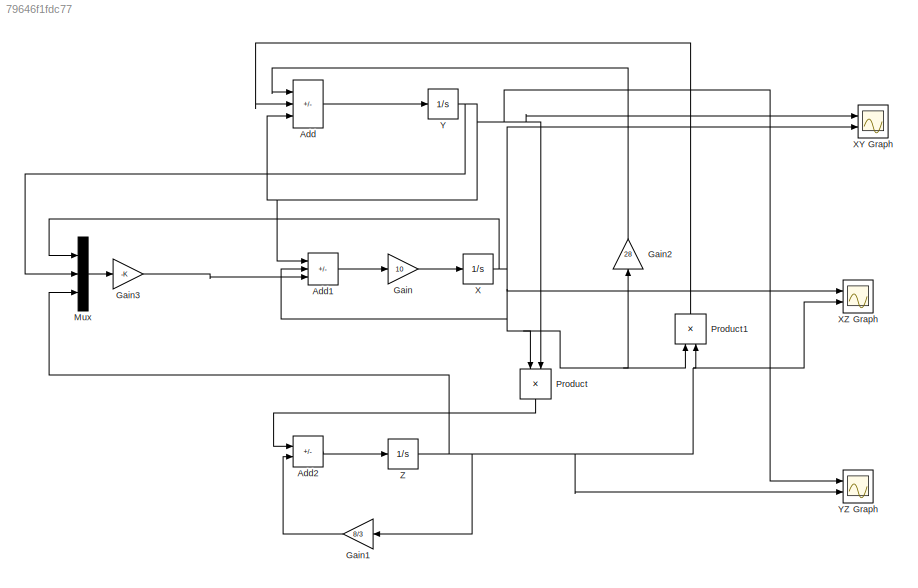
MODEL slx_79646f1fdc77
KIND model
CONFIG AbsTol = auto
CONFIG EnableMultiTasking = off
CONFIG FixedStep = auto
CONFIG MaxStep = auto
CONFIG MinStep = auto
CONFIG RelTol = 1e-3
CONFIG SampleTimeConstraint = Unconstrained
CONFIG SolverName = ode23s
CONFIG StartTime = 0.0
CONFIG StopTime = 3.0
BLOCK [Sum] Add
  IconShape = rectangular
  Inputs = +--
  Ports = [3, 1]
BLOCK [Sum] Add1
  IconShape = rectangular
  Inputs = +-+
  Ports = [3, 1]
BLOCK [Sum] Add2
  IconShape = rectangular
  Inputs = +-
  Ports = [2, 1]
BLOCK [Gain] Gain
  Gain = 10
BLOCK [Gain] Gain1
  Gain = 8/3
  NameLocation = top
BLOCK [Gain] Gain2
  Gain = 28
  NameLocation = right
BLOCK [Gain] Gain3
  Gain = -K
  Multiplication = Matrix(K*u)
BLOCK [Mux] Mux
  DisplayOption = bar
  Inputs = 3
  Ports = [3, 1]
BLOCK [Product] Product
  NameLocation = left
  Ports = [2, 1]
BLOCK [Product] Product1
  NameLocation = right
  Ports = [2, 1]
BLOCK [Integrator] X
  InitialCondition = 2
  Ports = [1, 1]
BLOCK [Scope] XY Graph
  Floating = off
  NumInputPorts = 2
  Ports = [2]
  ScopeSpecificationString = Simulink.scopes.TimeScopeBlockCfg('CurrentConfiguration', extmgr.ConfigurationSet(extmgr.Configuration('Core','General UI',true,'FigureColor',[1 1 1]),extmgr.Configuration('Core','Source UI',true),extmgr.Configuration('Sources','WiredSimulink',true),extmgr.Configuration('Visuals','Time Domain',true,'SerializedDisplays',{struct('MinYLimReal','-0.63118','MaxYLimReal','3.92489','YLabelReal','','MinYL...<+1627ch>
BLOCK [Scope] XZ Graph
  Floating = off
  NumInputPorts = 2
  Ports = [2]
  ScopeSpecificationString = Simulink.scopes.TimeScopeBlockCfg('CurrentConfiguration', extmgr.ConfigurationSet(extmgr.Configuration('Core','General UI',true,'FigureColor',[1 1 1]),extmgr.Configuration('Core','Source UI',true),extmgr.Configuration('Sources','WiredSimulink',true,'DataLoggingVariableName','ScopeData1'),extmgr.Configuration('Visuals','Time Domain',true,'SerializedDisplays',{struct('MinYLimReal','-2.69752','MaxYLi...<+1670ch>
BLOCK [Integrator] Y
  Ports = [1, 1]
BLOCK [Scope] YZ Graph
  Floating = off
  NumInputPorts = 2
  Ports = [2]
  ScopeSpecificationString = Simulink.scopes.TimeScopeBlockCfg('CurrentConfiguration', extmgr.ConfigurationSet(extmgr.Configuration('Core','General UI',true,'FigureColor',[1 1 1]),extmgr.Configuration('Core','Source UI',true),extmgr.Configuration('Sources','WiredSimulink',true,'DataLoggingVariableName','ScopeData2'),extmgr.Configuration('Visuals','Time Domain',true,'SerializedDisplays',{struct('MinYLimReal','-2.5','MaxYLimRea...<+1646ch>
BLOCK [Integrator] Z
  InitialCondition = 20
  Ports = [1, 1]
LINE Add1:1 -> Gain:1
LINE Add2:1 -> Z:1
LINE Add:1 -> Y:1
LINE Gain1:1 -> Add2:2
LINE Gain2:1 -> Add:1
LINE Gain3:1 -> Add1:3
LINE Gain:1 -> X:1
LINE Mux:1 -> Gain3:1
LINE Product1:1 -> Add:2
LINE Product:1 -> Add2:1
NET X:1 -> Add1:2, Gain2:1, Mux:1, Product1:1, Product:1, XY Graph:2, XZ Graph:1
NET Y:1 -> Add1:1, Add:3, Mux:2, Product:2, XY Graph:1, YZ Graph:1
NET Z:1 -> Gain1:1, Mux:3, Product1:2, XZ Graph:2, YZ Graph:2
note: NET lines group one-source signal fan-out (src -> all destinations, sorted); 1:1 wires keep LINE
